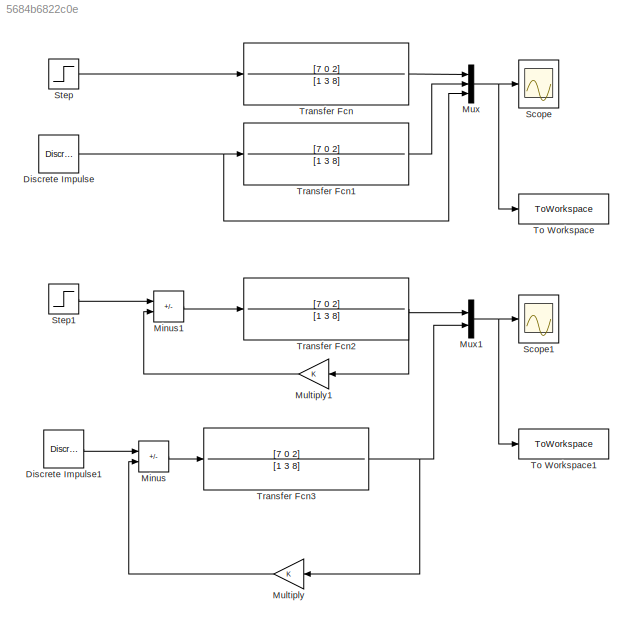
MODEL slx_5684b6822c0e
KIND model
CONFIG AbsTol = auto
CONFIG EnableMultiTasking = off
CONFIG FixedStep = auto
CONFIG MaxStep = auto
CONFIG MinStep = auto
CONFIG RelTol = 1e-3
CONFIG SampleTimeConstraint = Unconstrained
CONFIG SolverName = VariableStepAuto
CONFIG StartTime = 0.0
CONFIG StopTime = 30
BLOCK [Reference] Discrete Impulse  REF=dspsrcs4/Discrete 
Impulse
  SourceBlock = dspsrcs4/Discrete \nImpulse
  SourceType = Discrete Impulse
BLOCK [Reference] Discrete Impulse1  REF=dspsrcs4/Discrete 
Impulse
  SourceBlock = dspsrcs4/Discrete \nImpulse
  SourceType = Discrete Impulse
BLOCK [Sum] Minus
  IconShape = rectangular
  Inputs = +-
BLOCK [Sum] Minus1
  IconShape = rectangular
  Inputs = +-
BLOCK [Gain] Multiply
  NameLocation = top
BLOCK [Gain] Multiply1
  NameLocation = top
BLOCK [Mux] Mux
  DisplayOption = bar
  Inputs = 3
BLOCK [Mux] Mux1
  DisplayOption = bar
  Inputs = 2
BLOCK [Scope] Scope
  Floating = off
  NumInputPorts = 1
  ScopeSpecificationString = Simulink.scopes.TimeScopeBlockCfg('CurrentConfiguration', extmgr.ConfigurationSet(extmgr.Configuration('Core','General UI',true),extmgr.Configuration('Core','Source UI',true),extmgr.Configuration('Sources','WiredSimulink',true),extmgr.Configuration('Visuals','Time Domain',true,'SerializedDisplays',{struct('MinYLimReal','-3.16272','MaxYLimReal','8.12919','YLabelReal','','MinYLimMag','0.00000','MaxY...<+1396ch>
BLOCK [Scope] Scope1
  Floating = off
  NumInputPorts = 1
  ScopeSpecificationString = Simulink.scopes.TimeScopeBlockCfg('CurrentConfiguration', extmgr.ConfigurationSet(extmgr.Configuration('Core','General UI',true),extmgr.Configuration('Core','Source UI',true),extmgr.Configuration('Sources','WiredSimulink',true,'DataLoggingVariableName','ScopeData1'),extmgr.Configuration('Visuals','Time Domain',true,'SerializedDisplays',{struct('MinYLimReal','-0.37308','MaxYLimReal','1.01368','YLab...<+1415ch>
BLOCK [Step] Step
  SampleTime = 0
  Time = 0
BLOCK [Step] Step1
  SampleTime = 0
  Time = 0
BLOCK [ToWorkspace] To Workspace
  FixptAsFi = on
  MaxDataPoints = inf
  SampleTime = -1
  SaveFormat = Structure With Time
  VariableName = simout
BLOCK [ToWorkspace] To Workspace1
  FixptAsFi = on
  MaxDataPoints = inf
  SampleTime = -1
  SaveFormat = Structure With Time
  VariableName = simout1
BLOCK [TransferFcn] Transfer Fcn
  Denominator = [1 3 8]
  Numerator = [7 0 2]
BLOCK [TransferFcn] Transfer Fcn1
  Denominator = [1 3 8]
  Numerator = [7 0 2]
BLOCK [TransferFcn] Transfer Fcn2
  Denominator = [1 3 8]
  Numerator = [7 0 2]
BLOCK [TransferFcn] Transfer Fcn3
  Denominator = [1 3 8]
  Numerator = [7 0 2]
LINE Discrete Impulse1:1 -> Minus:1
NET Discrete Impulse:1 -> Mux:3, Transfer Fcn1:1
LINE Minus1:1 -> Transfer Fcn2:1
LINE Minus:1 -> Transfer Fcn3:1
LINE Multiply1:1 -> Minus1:2
LINE Multiply:1 -> Minus:2
NET Mux1:1 -> Scope1:1, To Workspace1:1
NET Mux:1 -> Scope:1, To Workspace:1
LINE Step1:1 -> Minus1:1
LINE Step:1 -> Transfer Fcn:1
LINE Transfer Fcn1:1 -> Mux:2
NET Transfer Fcn2:1 -> Multiply1:1, Mux1:1
NET Transfer Fcn3:1 -> Multiply:1, Mux1:2
LINE Transfer Fcn:1 -> Mux:1
note: NET lines group one-source signal fan-out (src -> all destinations, sorted); 1:1 wires keep LINE
